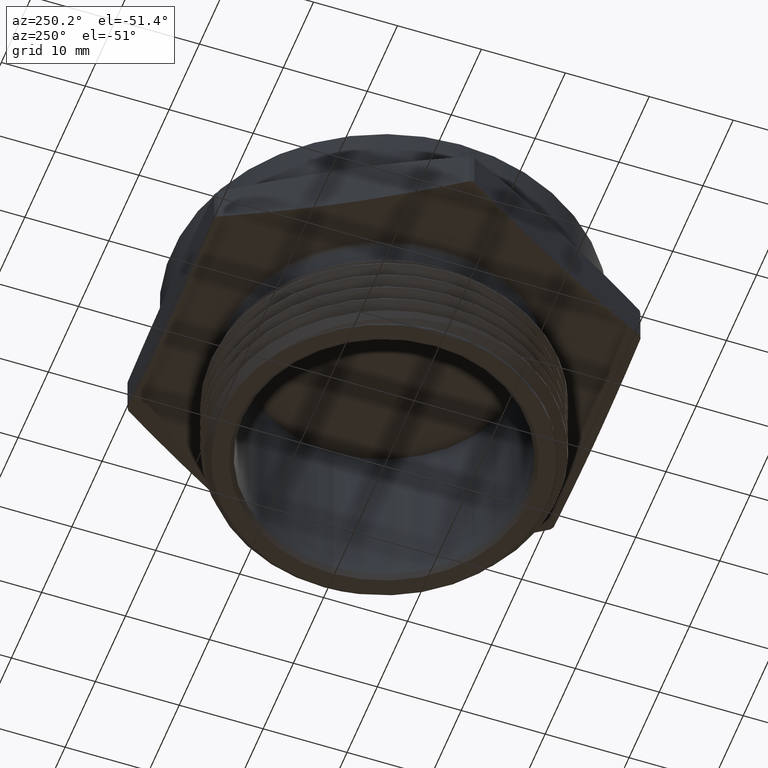
[diagram: clean part render]
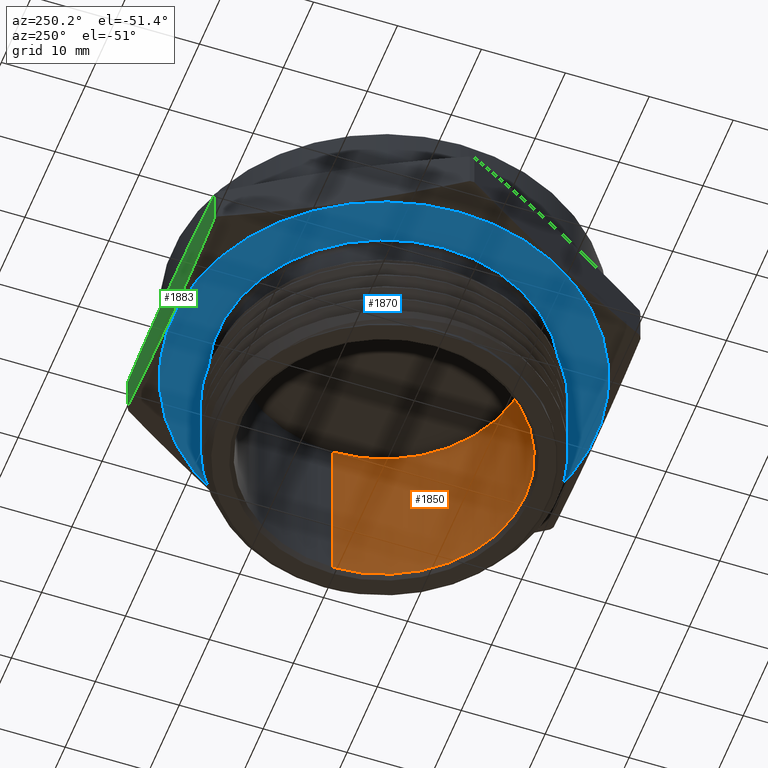
[diagram: same view with three faces highlighted in distinct colors, each labeled with its STEP entity id]
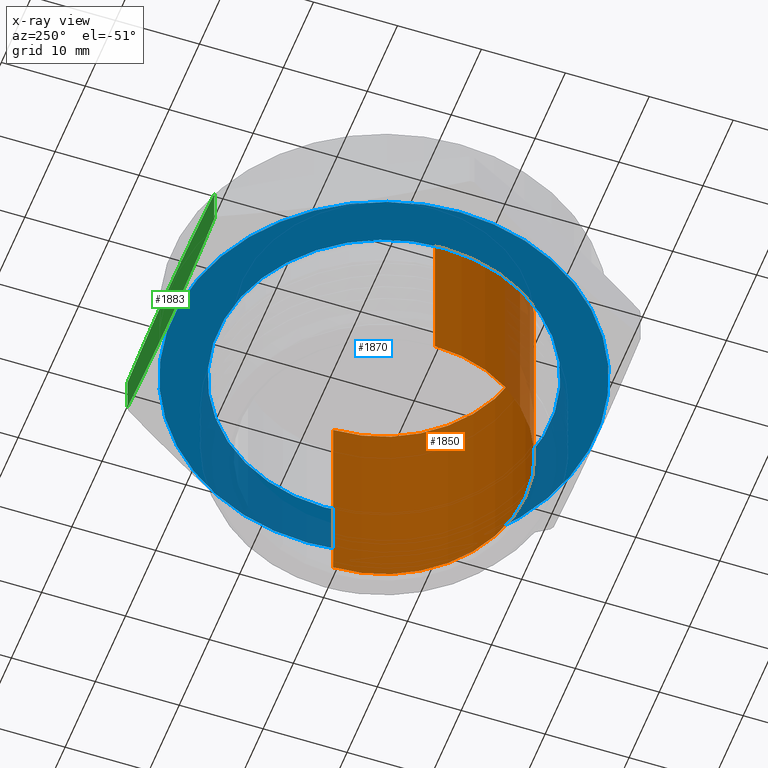
[diagram: x-ray of the same camera — body ghosted, the three highlighted faces saturated]
A machine part, auxiliary view with three faces highlighted in distinct colors.
The next image is the same camera in x-ray (body ghosted, the three faces saturated) — at least one of them is partly hidden behind the body in this view.
Their STEP definitions:

[orange] entity #1850 — the highlighted cylindrical surface (partial cylindrical patch) has radius 16.8529 mm, axis along (-0, -0, 1).
#17 = EDGE_CURVE ( 'NONE', #1288, #1406, #2534, .T. ) ;
#18 = EDGE_CURVE ( 'NONE', #1286, #1406, #2537, .T. ) ;
#22 = EDGE_CURVE ( 'NONE', #1303, #1286, #2540, .T. ) ;
#77 = AXIS2_PLACEMENT_3D ( 'NONE', #1533, #1532, #1531 ) ;
#123 = AXIS2_PLACEMENT_3D ( 'NONE', #347, #348, #349 ) ;
#144 = AXIS2_PLACEMENT_3D ( 'NONE', #3009, #3010, #3007 ) ;
#347 = CARTESIAN_POINT ( 'NONE',  ( 0.0000000000000000000, 0.0000000000000000000, -0.5600000000000000500 ) ) ;
#348 = DIRECTION ( 'NONE',  ( -0.0000000000000000000, -0.0000000000000000000, 1.000000000000000000 ) ) ;
#349 = DIRECTION ( 'NONE',  ( 1.000000000000000000, 0.0000000000000000000, 0.0000000000000000000 ) ) ;
#1281 = ORIENTED_EDGE ( 'NONE', *, *, #18, .T. ) ;
#1282 = ORIENTED_EDGE ( 'NONE', *, *, #17, .F. ) ;
#1286 = VERTEX_POINT ( 'NONE', #3344 ) ;
#1288 = VERTEX_POINT ( 'NONE', #3339 ) ;
#1296 = ORIENTED_EDGE ( 'NONE', *, *, #1328, .F. ) ;
#1303 = VERTEX_POINT ( 'NONE', #3363 ) ;
#1304 = ORIENTED_EDGE ( 'NONE', *, *, #22, .T. ) ;
#1328 = EDGE_CURVE ( 'NONE', #1303, #1288, #2628, .T. ) ;
#1406 = VERTEX_POINT ( 'NONE', #2979 ) ;
#1524 = DIRECTION ( 'NONE',  ( -0.0000000000000000000, -0.0000000000000000000, 1.000000000000000000 ) ) ;
#1529 = CARTESIAN_POINT ( 'NONE',  ( -0.6634999999999998700, 8.125531512342688400E-017, 0.6741763569927300400 ) ) ;
#1531 = DIRECTION ( 'NONE',  ( 1.000000000000000000, 0.0000000000000000000, 0.0000000000000000000 ) ) ;
#1532 = DIRECTION ( 'NONE',  ( -0.0000000000000000000, -0.0000000000000000000, 1.000000000000000000 ) ) ;
#1533 = CARTESIAN_POINT ( 'NONE',  ( 0.0000000000000000000, 0.0000000000000000000, 0.4119999999999999800 ) ) ;
#1539 = CARTESIAN_POINT ( 'NONE',  ( 0.6634999999999998700, 0.0000000000000000000, 0.6741763569927300400 ) ) ;
#1543 = DIRECTION ( 'NONE',  ( -0.0000000000000000000, -0.0000000000000000000, 1.000000000000000000 ) ) ;
#1609 = EDGE_LOOP ( 'NONE', ( #1296, #1304, #1281, #1282 ) ) ;
#1850 = ADVANCED_FACE ( 'NONE', ( #2686 ), #2685, .F. ) ;
#2534 = LINE ( 'NONE', #1539, #2535 ) ;
#2535 = VECTOR ( 'NONE', #1543, 39.37007874015748100 ) ;
#2537 = CIRCLE ( 'NONE', #77, 0.6634999999999998700 ) ;
#2540 = LINE ( 'NONE', #1529, #2544 ) ;
#2544 = VECTOR ( 'NONE', #1524, 39.37007874015748100 ) ;
#2628 = CIRCLE ( 'NONE', #123, 0.6634999999999998700 ) ;
#2685 = CYLINDRICAL_SURFACE ( 'NONE', #144, 0.6634999999999998700 ) ;
#2686 = FACE_OUTER_BOUND ( 'NONE', #1609, .T. ) ;
#2979 = CARTESIAN_POINT ( 'NONE',  ( 0.6634999999999998700, 0.0000000000000000000, 0.4119999999999999800 ) ) ;
#3007 = DIRECTION ( 'NONE',  ( 1.000000000000000000, 0.0000000000000000000, 0.0000000000000000000 ) ) ;
#3009 = CARTESIAN_POINT ( 'NONE',  ( 0.0000000000000000000, 0.0000000000000000000, 0.6741763569927300400 ) ) ;
#3010 = DIRECTION ( 'NONE',  ( -0.0000000000000000000, -0.0000000000000000000, 1.000000000000000000 ) ) ;
#3339 = CARTESIAN_POINT ( 'NONE',  ( 0.6634999999999998700, 0.0000000000000000000, -0.5600000000000000500 ) ) ;
#3344 = CARTESIAN_POINT ( 'NONE',  ( -0.6634999999999998700, 8.125531512342688400E-017, 0.4119999999999999800 ) ) ;
#3363 = CARTESIAN_POINT ( 'NONE',  ( -0.6634999999999998700, 8.125531512342688400E-017, -0.5600000000000000500 ) ) ;

[blue] entity #1870 — the highlighted planar face has unit normal (0, -0, 1).
#66 = EDGE_CURVE ( 'NONE', #1386, #1410, #2587, .T. ) ;
#67 = EDGE_CURVE ( 'NONE', #1397, #1419, #2586, .T. ) ;
#96 = AXIS2_PLACEMENT_3D ( 'NONE', #2526, #2527, #2528 ) ;
#97 = AXIS2_PLACEMENT_3D ( 'NONE', #3129, #3130, #3131 ) ;
#104 = AXIS2_PLACEMENT_3D ( 'NONE', #3278, #3279, #3280 ) ;
#128 = AXIS2_PLACEMENT_3D ( 'NONE', #371, #372, #373 ) ;
#162 = AXIS2_PLACEMENT_3D ( 'NONE', #3069, #3068, #3073 ) ;
#371 = CARTESIAN_POINT ( 'NONE',  ( 1.488511584291886200E-032, 0.0000000000000000000, 1.215461948153745400E-016 ) ) ;
#372 = DIRECTION ( 'NONE',  ( -1.224646799147349800E-016, -0.0000000000000000000, -1.000000000000000000 ) ) ;
#373 = DIRECTION ( 'NONE',  ( -1.000000000000000000, 0.0000000000000000000, 1.224646799147350000E-016 ) ) ;
#1185 = EDGE_CURVE ( 'NONE', #1410, #1386, #2595, .T. ) ;
#1337 = EDGE_CURVE ( 'NONE', #1419, #1397, #2640, .T. ) ;
#1386 = VERTEX_POINT ( 'NONE', #2961 ) ;
#1397 = VERTEX_POINT ( 'NONE', #2947 ) ;
#1410 = VERTEX_POINT ( 'NONE', #2983 ) ;
#1419 = VERTEX_POINT ( 'NONE', #2992 ) ;
#1650 = EDGE_LOOP ( 'NONE', ( #1661, #2795 ) ) ;
#1651 = EDGE_LOOP ( 'NONE', ( #1666, #1665 ) ) ;
#1661 = ORIENTED_EDGE ( 'NONE', *, *, #66, .T. ) ;
#1665 = ORIENTED_EDGE ( 'NONE', *, *, #1337, .T. ) ;
#1666 = ORIENTED_EDGE ( 'NONE', *, *, #67, .T. ) ;
#1870 = ADVANCED_FACE ( 'NONE', ( #2723, #2727 ), #3071, .F. ) ;
#2526 = CARTESIAN_POINT ( 'NONE',  ( 0.0000000000000000000, 0.0000000000000000000, -3.414809992080329000E-017 ) ) ;
#2527 = DIRECTION ( 'NONE',  ( -0.0000000000000000000, -0.0000000000000000000, 1.000000000000000000 ) ) ;
#2528 = DIRECTION ( 'NONE',  ( 1.000000000000000000, 0.0000000000000000000, 0.0000000000000000000 ) ) ;
#2586 = CIRCLE ( 'NONE', #97, 0.9925000000000004900 ) ;
#2587 = CIRCLE ( 'NONE', #96, 0.7784999999999998600 ) ;
#2595 = CIRCLE ( 'NONE', #104, 0.7784999999999998600 ) ;
#2640 = CIRCLE ( 'NONE', #128, 0.9925000000000004900 ) ;
#2723 = FACE_OUTER_BOUND ( 'NONE', #1651, .T. ) ;
#2727 = FACE_BOUND ( 'NONE', #1650, .T. ) ;
#2795 = ORIENTED_EDGE ( 'NONE', *, *, #1185, .T. ) ;
#2947 = CARTESIAN_POINT ( 'NONE',  ( 0.9925000000000004900, 0.0000000000000000000, 0.0000000000000000000 ) ) ;
#2961 = CARTESIAN_POINT ( 'NONE',  ( 0.7784999999999998600, 0.0000000000000000000, -3.201384367575308300E-017 ) ) ;
#2983 = CARTESIAN_POINT ( 'NONE',  ( -0.7784999999999998600, 9.533875331362143900E-017, -3.201384367575308300E-017 ) ) ;
#2992 = CARTESIAN_POINT ( 'NONE',  ( -0.9925000000000004900, 1.215461948153748600E-016, 2.430923896307490900E-016 ) ) ;
#3068 = DIRECTION ( 'NONE',  ( 0.0000000000000000000, -0.0000000000000000000, 1.000000000000000000 ) ) ;
#3069 = CARTESIAN_POINT ( 'NONE',  ( 1.154700538379251200, 5.407974423034528400E-016, 0.0000000000000000000 ) ) ;
#3071 = PLANE ( 'NONE',  #162 ) ;
#3073 = DIRECTION ( 'NONE',  ( 1.000000000000000000, 0.0000000000000000000, -0.0000000000000000000 ) ) ;
#3129 = CARTESIAN_POINT ( 'NONE',  ( 1.488511584291886200E-032, 0.0000000000000000000, 1.215461948153745400E-016 ) ) ;
#3130 = DIRECTION ( 'NONE',  ( -1.224646799147349800E-016, -0.0000000000000000000, -1.000000000000000000 ) ) ;
#3131 = DIRECTION ( 'NONE',  ( -1.000000000000000000, 0.0000000000000000000, 1.224646799147350000E-016 ) ) ;
#3278 = CARTESIAN_POINT ( 'NONE',  ( 0.0000000000000000000, 0.0000000000000000000, -3.414809992080329000E-017 ) ) ;
#3279 = DIRECTION ( 'NONE',  ( -0.0000000000000000000, -0.0000000000000000000, 1.000000000000000000 ) ) ;
#3280 = DIRECTION ( 'NONE',  ( 1.000000000000000000, 0.0000000000000000000, 0.0000000000000000000 ) ) ;

[green] entity #1883 — the highlighted planar face has unit normal (0, -1, 0).
#53 = EDGE_CURVE ( 'NONE', #1385, #1399, #2566, .T. ) ;
#54 = EDGE_CURVE ( 'NONE', #1430, #1390, #2570, .T. ) ;
#175 = AXIS2_PLACEMENT_3D ( 'NONE', #539, #544, #545 ) ;
#398 = CARTESIAN_POINT ( 'NONE',  ( -0.4711164412922937400, 1.000000000000000200, 0.02335503116711852600 ) ) ;
#416 = CARTESIAN_POINT ( 'NONE',  ( -0.3766229814007743800, 1.000000000000000200, 0.01534796103514142800 ) ) ;
#428 = CARTESIAN_POINT ( 'NONE',  ( -0.5652547451130173200, 0.9999999999999998900, 0.03320144936890014100 ) ) ;
#430 = CARTESIAN_POINT ( 'NONE',  ( -0.1879229409414410700, 1.000000000000000000, 0.004451921815383777200 ) ) ;
#431 = CARTESIAN_POINT ( 'NONE',  ( -0.09363075436877449400, 1.000000000000000000, 0.001582259022403712300 ) ) ;
#432 = CARTESIAN_POINT ( 'NONE',  ( 0.09482434700101426100, 1.000000000000000000, 0.001606165108026884000 ) ) ;
#433 = CARTESIAN_POINT ( 'NONE',  ( 0.1889872821005720800, 1.000000000000000200, 0.004498828857586960500 ) ) ;
#434 = CARTESIAN_POINT ( 'NONE',  ( 0.3771984943358157000, 1.000000000000000200, 0.01539587085126154300 ) ) ;
#435 = CARTESIAN_POINT ( 'NONE',  ( 0.4712474783010945400, 1.000000000000000200, 0.02336873701411370700 ) ) ;
#436 = CARTESIAN_POINT ( 'NONE',  ( 0.5652547451130169900, 0.9999999999999998900, 0.03320144936889993200 ) ) ;
#471 = CARTESIAN_POINT ( 'NONE',  ( 0.4712474783010945400, 1.000000000000000200, 0.2166312629858865600 ) ) ;
#472 = CARTESIAN_POINT ( 'NONE',  ( 0.3771984943358155400, 1.000000000000000200, 0.2246041291487386700 ) ) ;
#476 = CARTESIAN_POINT ( 'NONE',  ( 0.5652547451130172100, 1.000000000000000200, 0.2067985506311001700 ) ) ;
#477 = CARTESIAN_POINT ( 'NONE',  ( 0.1889872821005719700, 1.000000000000000200, 0.2355011711424133400 ) ) ;
#478 = CARTESIAN_POINT ( 'NONE',  ( 0.09482434700101434500, 1.000000000000000200, 0.2383938348919733800 ) ) ;
#479 = CARTESIAN_POINT ( 'NONE',  ( -0.09363075436877454900, 1.000000000000000400, 0.2384177409775966600 ) ) ;
#480 = CARTESIAN_POINT ( 'NONE',  ( -0.1879229409414410200, 1.000000000000000200, 0.2355480781846165100 ) ) ;
#481 = CARTESIAN_POINT ( 'NONE',  ( -0.3766229814007743800, 1.000000000000000200, 0.2246520389648589400 ) ) ;
#482 = CARTESIAN_POINT ( 'NONE',  ( -0.4711164412922935800, 1.000000000000000200, 0.2166449688328819200 ) ) ;
#483 = CARTESIAN_POINT ( 'NONE',  ( -0.5652547451130173200, 0.9999999999999998900, 0.2067985506311003100 ) ) ;
#538 = PLANE ( 'NONE',  #175 ) ;
#539 = CARTESIAN_POINT ( 'NONE',  ( 0.5773502691896256200, 1.000000000000000200, 0.2399999999999999900 ) ) ;
#544 = DIRECTION ( 'NONE',  ( 1.182924880895401000E-016, -1.000000000000000000, 0.0000000000000000000 ) ) ;
#545 = DIRECTION ( 'NONE',  ( 1.000000000000000000, 1.182924880895401000E-016, 0.0000000000000000000 ) ) ;
#1346 = EDGE_CURVE ( 'NONE', #1399, #1430, #3109, .T. ) ;
#1356 = EDGE_CURVE ( 'NONE', #1390, #1385, #3112, .T. ) ;
#1385 = VERTEX_POINT ( 'NONE', #2960 ) ;
#1390 = VERTEX_POINT ( 'NONE', #2965 ) ;
#1399 = VERTEX_POINT ( 'NONE', #2972 ) ;
#1430 = VERTEX_POINT ( 'NONE', #3003 ) ;
#1641 = EDGE_LOOP ( 'NONE', ( #1721, #1722, #1723, #1724 ) ) ;
#1721 = ORIENTED_EDGE ( 'NONE', *, *, #53, .F. ) ;
#1722 = ORIENTED_EDGE ( 'NONE', *, *, #1356, .F. ) ;
#1723 = ORIENTED_EDGE ( 'NONE', *, *, #54, .F. ) ;
#1724 = ORIENTED_EDGE ( 'NONE', *, *, #1346, .F. ) ;
#1883 = ADVANCED_FACE ( 'NONE', ( #2743 ), #538, .F. ) ;
#2473 = CARTESIAN_POINT ( 'NONE',  ( -0.5652547451130173200, 0.9999999999999998900, 6.922374143055074700E-017 ) ) ;
#2483 = DIRECTION ( 'NONE',  ( -1.224646799147349800E-016, -0.0000000000000000000, -1.000000000000000000 ) ) ;
#2484 = CARTESIAN_POINT ( 'NONE',  ( 0.5652547451130169900, 0.9999999999999998900, -6.922374143055074700E-017 ) ) ;
#2486 = DIRECTION ( 'NONE',  ( 1.224646799147349800E-016, 0.0000000000000000000, 1.000000000000000000 ) ) ;
#2566 = LINE ( 'NONE', #2473, #2571 ) ;
#2570 = LINE ( 'NONE', #2484, #2573 ) ;
#2571 = VECTOR ( 'NONE', #2483, 39.37007874015748100 ) ;
#2573 = VECTOR ( 'NONE', #2486, 39.37007874015748100 ) ;
#2743 = FACE_OUTER_BOUND ( 'NONE', #1641, .T. ) ;
#2960 = CARTESIAN_POINT ( 'NONE',  ( -0.5652547451130173200, 0.9999999999999998900, 0.2067985506311003100 ) ) ;
#2965 = CARTESIAN_POINT ( 'NONE',  ( 0.5652547451130172100, 1.000000000000000200, 0.2067985506311001700 ) ) ;
#2972 = CARTESIAN_POINT ( 'NONE',  ( -0.5652547451130173200, 0.9999999999999998900, 0.03320144936890014100 ) ) ;
#3003 = CARTESIAN_POINT ( 'NONE',  ( 0.5652547451130169900, 0.9999999999999998900, 0.03320144936889993200 ) ) ;
#3109 = B_SPLINE_CURVE_WITH_KNOTS ( 'NONE', 3,
 ( #428, #398, #416, #430, #431, #432, #433, #434, #435, #436 ),
 .UNSPECIFIED., .F., .F.,
 ( 4, 2, 2, 2, 4 ),
 ( 0.02464900139867590200, 0.03185635742412760300, 0.03906371344957930400, 0.04627106947503100600, 0.05347842550048270700 ),
 .UNSPECIFIED. ) ;
#3112 = B_SPLINE_CURVE_WITH_KNOTS ( 'NONE', 3,
 ( #476, #471, #472, #477, #478, #479, #480, #481, #482, #483 ),
 .UNSPECIFIED., .F., .F.,
 ( 4, 2, 2, 2, 4 ),
 ( 0.05573734503506152400, 0.06293765041631957400, 0.07013795579757764500, 0.07733826117883570200, 0.08453856656009375900 ),
 .UNSPECIFIED. ) ;